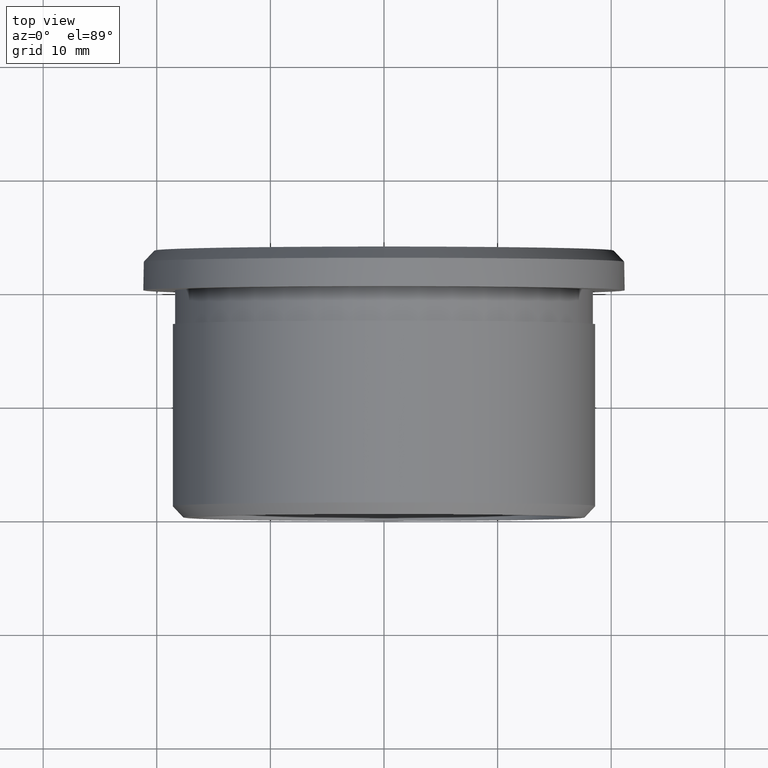
[diagram: clean part render]
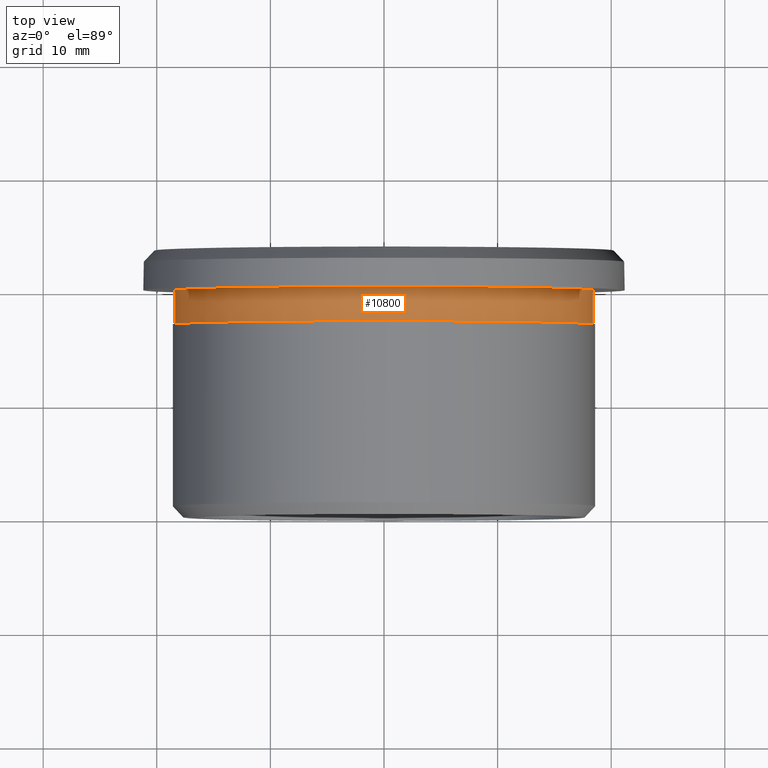
[diagram: same view with one face highlighted and labeled with its STEP entity id]
A machine part, top view. The second image highlights one B-rep face of the part: STEP entity #10800.
In plain terms, the highlighted cylindrical surface (bore or boss wall) has radius 18.45 mm, axis along (-0, -1, -0).
Its self-contained STEP definition (entity closure, byte-faithful):
#263 = CIRCLE ( 'NONE', #4585, 18.45000000000000300 ) ;
#509 = CARTESIAN_POINT ( 'NONE',  ( 0.0000000000000000000, 17.00000000000000400, 0.0000000000000000000 ) ) ;
#943 = VERTEX_POINT ( 'NONE', #8668 ) ;
#1576 = AXIS2_PLACEMENT_3D ( 'NONE', #8735, #19221, #14735 ) ;
#3900 = DIRECTION ( 'NONE',  ( -0.0000000000000000000, -1.000000000000000000, -0.0000000000000000000 ) ) ;
#3972 = ORIENTED_EDGE ( 'NONE', *, *, #9905, .F. ) ;
#4585 = AXIS2_PLACEMENT_3D ( 'NONE', #12907, #3900, #14467 ) ;
#5820 = ORIENTED_EDGE ( 'NONE', *, *, #14059, .T. ) ;
#7855 = DIRECTION ( 'NONE',  ( -0.0000000000000000000, -1.000000000000000000, -0.0000000000000000000 ) ) ;
#8668 = CARTESIAN_POINT ( 'NONE',  ( 0.0000000000000000000, 20.00000000000000400, -18.45000000000000300 ) ) ;
#8735 = CARTESIAN_POINT ( 'NONE',  ( 0.0000000000000000000, 0.0000000000000000000, 0.0000000000000000000 ) ) ;
#9301 = FACE_OUTER_BOUND ( 'NONE', #15131, .T. ) ;
#9304 = DIRECTION ( 'NONE',  ( 0.0000000000000000000, 0.0000000000000000000, -1.000000000000000000 ) ) ;
#9905 = EDGE_CURVE ( 'NONE', #16572, #16572, #10039, .T. ) ;
#10039 = CIRCLE ( 'NONE', #16042, 18.45000000000000300 ) ;
#10800 = ADVANCED_FACE ( 'NONE', ( #16542, #9301 ), #15823, .T. ) ;
#12907 = CARTESIAN_POINT ( 'NONE',  ( 0.0000000000000000000, 20.00000000000000400, 0.0000000000000000000 ) ) ;
#14059 = EDGE_CURVE ( 'NONE', #943, #943, #263, .T. ) ;
#14467 = DIRECTION ( 'NONE',  ( 0.0000000000000000000, 0.0000000000000000000, -1.000000000000000000 ) ) ;
#14735 = DIRECTION ( 'NONE',  ( 0.0000000000000000000, 0.0000000000000000000, -1.000000000000000000 ) ) ;
#15131 = EDGE_LOOP ( 'NONE', ( #3972 ) ) ;
#15224 = CARTESIAN_POINT ( 'NONE',  ( 0.0000000000000000000, 17.00000000000000400, -18.45000000000000300 ) ) ;
#15823 = CYLINDRICAL_SURFACE ( 'NONE', #1576, 18.45000000000000300 ) ;
#15965 = EDGE_LOOP ( 'NONE', ( #5820 ) ) ;
#16042 = AXIS2_PLACEMENT_3D ( 'NONE', #509, #7855, #9304 ) ;
#16542 = FACE_OUTER_BOUND ( 'NONE', #15965, .T. ) ;
#16572 = VERTEX_POINT ( 'NONE', #15224 ) ;
#19221 = DIRECTION ( 'NONE',  ( -0.0000000000000000000, -1.000000000000000000, -0.0000000000000000000 ) ) ;